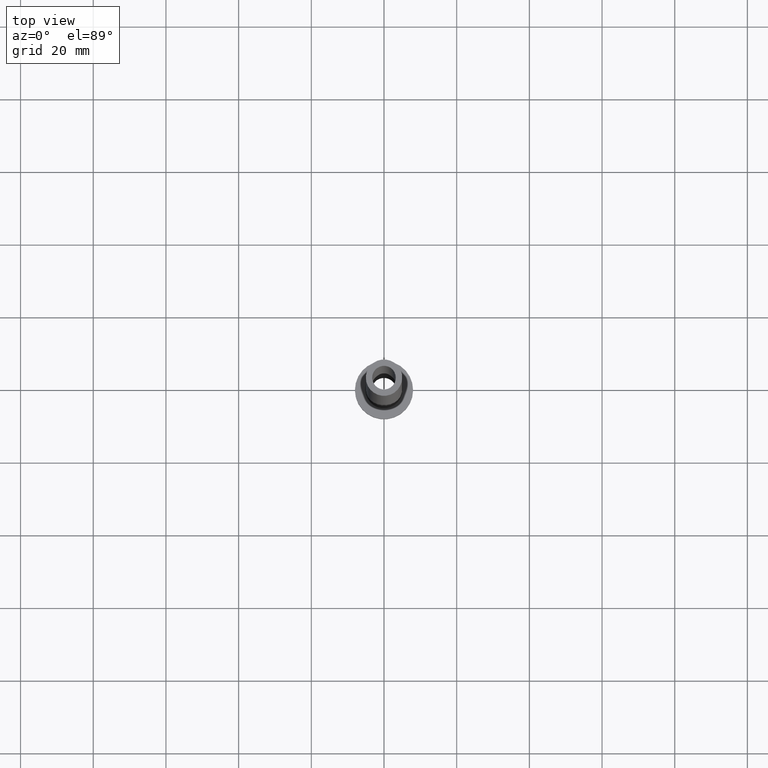
[diagram: clean part render]
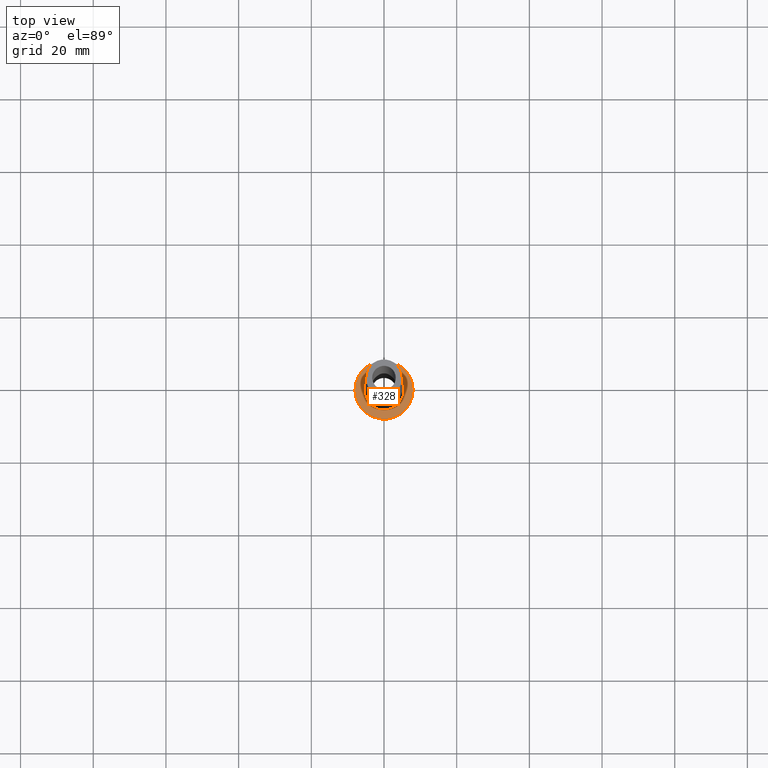
[diagram: same view with one face highlighted and labeled with its STEP entity id]
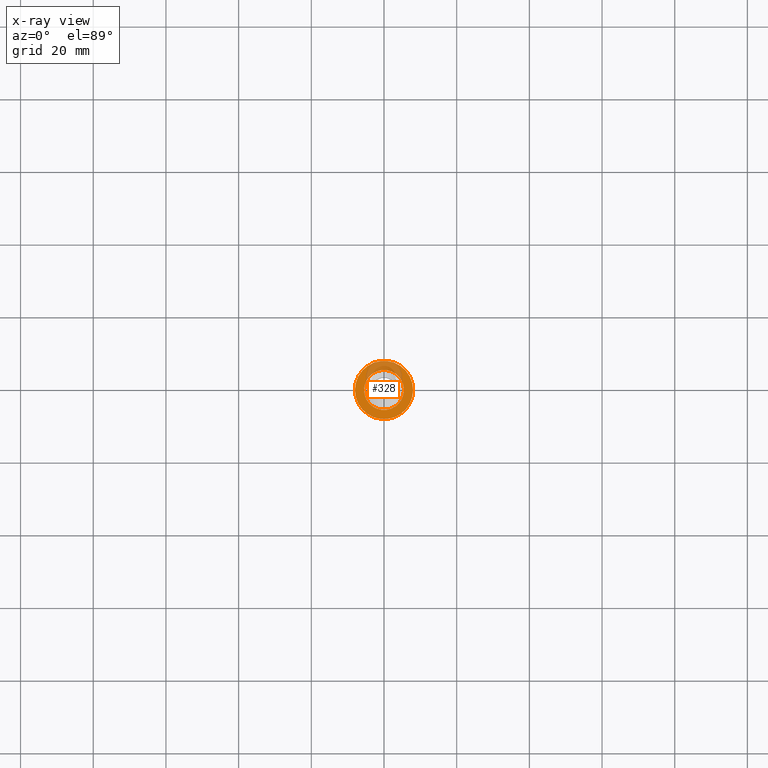
[diagram: x-ray of the same camera — body ghosted, the highlighted face saturated]
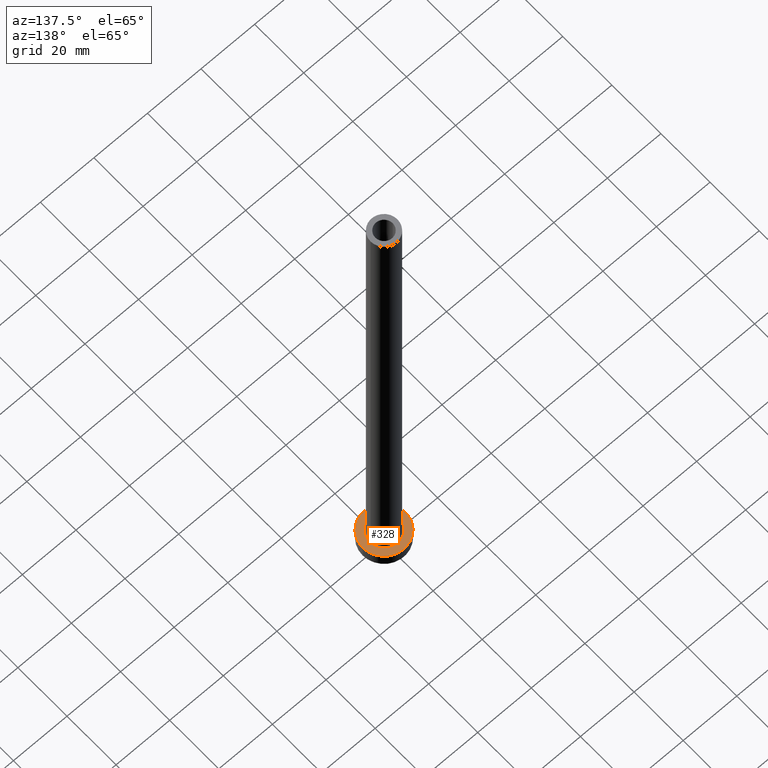
[diagram: same view with one face highlighted and labeled with its STEP entity id]
A machine part, top view. The second image highlights one B-rep face of the part: STEP entity #328.
The next image is the same camera in x-ray: the body ghosted, the highlighted face saturated — about 24% of this face is hidden behind the body in this view.
A second angle (auxiliary view) of the same face is appended — the face is thin or edge-on in the first view.
In plain terms, the highlighted planar face has unit normal (0, 0, 1).
Its self-contained STEP definition (entity closure, byte-faithful):
#19 = CIRCLE ( 'NONE', #106, 5.500000000000000000 ) ;
#21 = DIRECTION ( 'NONE',  ( 0.000000000000000000, 0.000000000000000000, 1.000000000000000000 ) ) ;
#26 = CARTESIAN_POINT ( 'NONE',  ( -5.500000000000000000, 6.735557395310442023E-16, 5.000000000000002665 ) ) ;
#30 = EDGE_CURVE ( 'NONE', #322, #308, #19, .T. ) ;
#43 = DIRECTION ( 'NONE',  ( 1.000000000000000000, 0.000000000000000000, 0.000000000000000000 ) ) ;
#65 = AXIS2_PLACEMENT_3D ( 'NONE', #359, #284, #113 ) ;
#86 = EDGE_LOOP ( 'NONE', ( #406, #360 ) ) ;
#101 = AXIS2_PLACEMENT_3D ( 'NONE', #372, #21, #335 ) ;
#106 = AXIS2_PLACEMENT_3D ( 'NONE', #326, #183, #43 ) ;
#113 = DIRECTION ( 'NONE',  ( 1.000000000000000000, 0.000000000000000000, -0.000000000000000000 ) ) ;
#115 = DIRECTION ( 'NONE',  ( 1.000000000000000000, 0.000000000000000000, 0.000000000000000000 ) ) ;
#140 = VERTEX_POINT ( 'NONE', #160 ) ;
#160 = CARTESIAN_POINT ( 'NONE',  ( -8.000000000000000000, 0.000000000000000000, 5.000000000000000000 ) ) ;
#166 = DIRECTION ( 'NONE',  ( 0.000000000000000000, 0.000000000000000000, 1.000000000000000000 ) ) ;
#183 = DIRECTION ( 'NONE',  ( -0.000000000000000000, -0.000000000000000000, -1.000000000000000000 ) ) ;
#198 = VERTEX_POINT ( 'NONE', #230 ) ;
#205 = AXIS2_PLACEMENT_3D ( 'NONE', #296, #269, #115 ) ;
#218 = FACE_OUTER_BOUND ( 'NONE', #86, .T. ) ;
#229 = EDGE_CURVE ( 'NONE', #198, #140, #236, .T. ) ;
#230 = CARTESIAN_POINT ( 'NONE',  ( 8.000000000000000000, 9.797174393178825657E-16, 5.000000000000000000 ) ) ;
#236 = CIRCLE ( 'NONE', #101, 8.000000000000000000 ) ;
#246 = PLANE ( 'NONE',  #65 ) ;
#262 = AXIS2_PLACEMENT_3D ( 'NONE', #461, #166, #280 ) ;
#264 = CIRCLE ( 'NONE', #205, 5.500000000000000000 ) ;
#269 = DIRECTION ( 'NONE',  ( -0.000000000000000000, -0.000000000000000000, -1.000000000000000000 ) ) ;
#280 = DIRECTION ( 'NONE',  ( 1.000000000000000000, 0.000000000000000000, 0.000000000000000000 ) ) ;
#281 = EDGE_CURVE ( 'NONE', #140, #198, #403, .T. ) ;
#284 = DIRECTION ( 'NONE',  ( 0.000000000000000000, 0.000000000000000000, 1.000000000000000000 ) ) ;
#292 = CARTESIAN_POINT ( 'NONE',  ( 5.500000000000000000, 0.000000000000000000, 5.000000000000002665 ) ) ;
#296 = CARTESIAN_POINT ( 'NONE',  ( 0.000000000000000000, 0.000000000000000000, 5.000000000000000000 ) ) ;
#308 = VERTEX_POINT ( 'NONE', #26 ) ;
#318 = EDGE_LOOP ( 'NONE', ( #370, #402 ) ) ;
#322 = VERTEX_POINT ( 'NONE', #292 ) ;
#326 = CARTESIAN_POINT ( 'NONE',  ( 0.000000000000000000, 0.000000000000000000, 5.000000000000000000 ) ) ;
#328 = ADVANCED_FACE ( 'NONE', ( #392, #218 ), #246, .T. ) ;
#335 = DIRECTION ( 'NONE',  ( 1.000000000000000000, 0.000000000000000000, 0.000000000000000000 ) ) ;
#359 = CARTESIAN_POINT ( 'NONE',  ( 0.000000000000000000, 0.000000000000000000, 5.000000000000000000 ) ) ;
#360 = ORIENTED_EDGE ( 'NONE', *, *, #229, .T. ) ;
#365 = EDGE_CURVE ( 'NONE', #308, #322, #264, .T. ) ;
#370 = ORIENTED_EDGE ( 'NONE', *, *, #30, .T. ) ;
#372 = CARTESIAN_POINT ( 'NONE',  ( 0.000000000000000000, 0.000000000000000000, 5.000000000000000000 ) ) ;
#392 = FACE_BOUND ( 'NONE', #318, .T. ) ;
#402 = ORIENTED_EDGE ( 'NONE', *, *, #365, .T. ) ;
#403 = CIRCLE ( 'NONE', #262, 8.000000000000000000 ) ;
#406 = ORIENTED_EDGE ( 'NONE', *, *, #281, .T. ) ;
#461 = CARTESIAN_POINT ( 'NONE',  ( 0.000000000000000000, 0.000000000000000000, 5.000000000000000000 ) ) ;